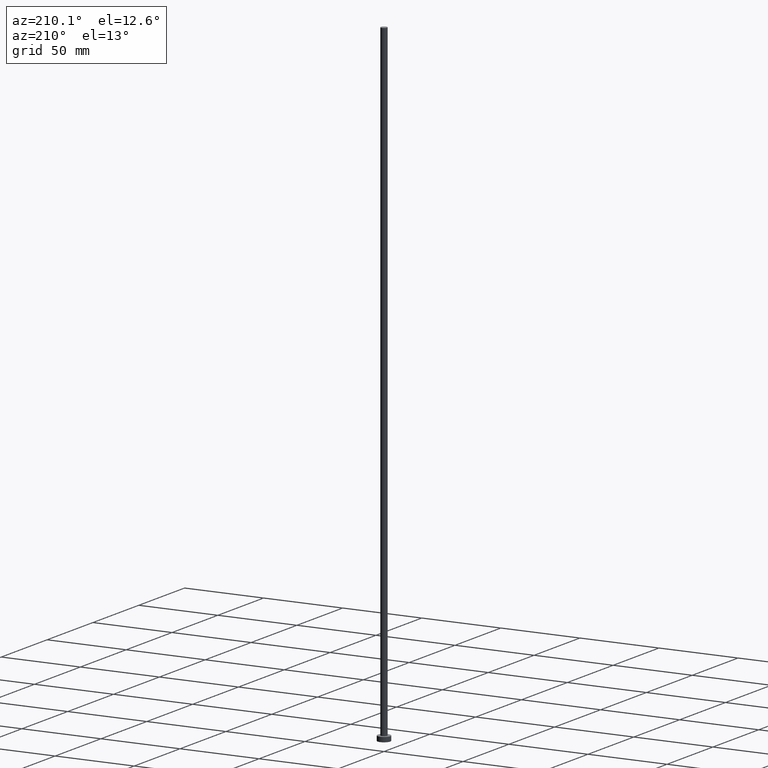
[diagram: clean part render]
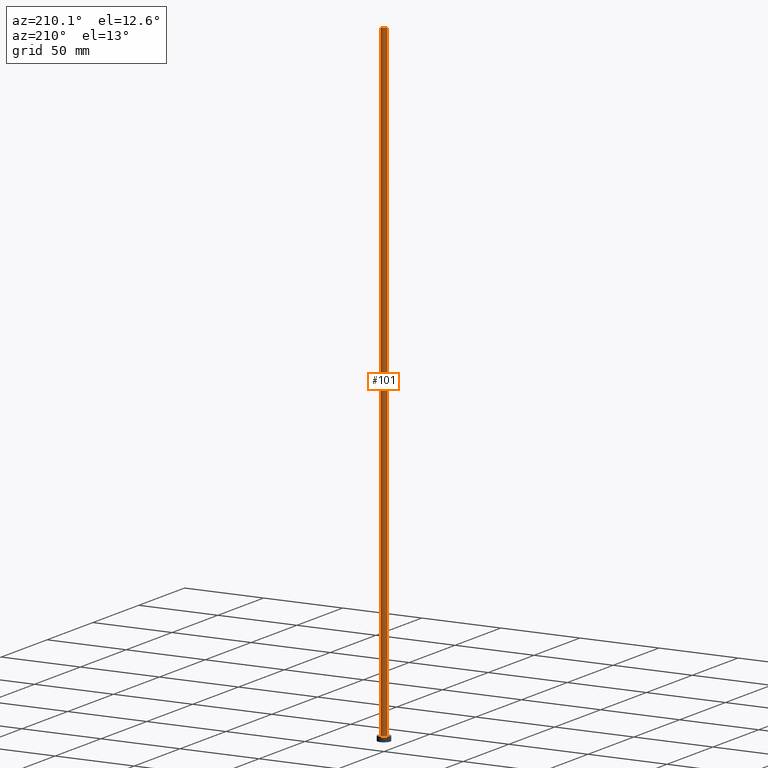
[diagram: same view with one face highlighted and labeled with its STEP entity id]
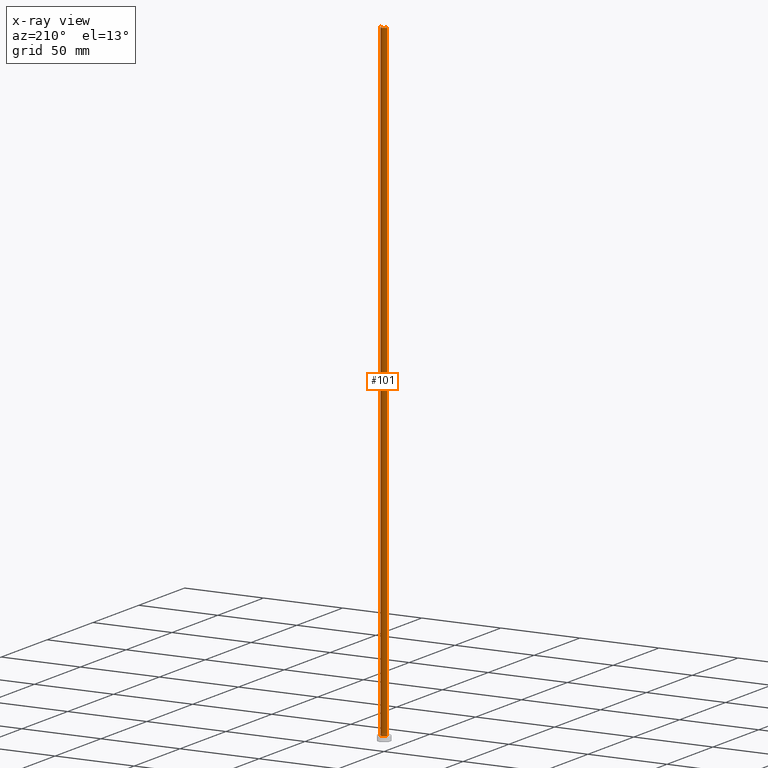
[diagram: x-ray of the same camera — body ghosted, the highlighted face saturated]
A machine part, auxiliary view. The second image highlights one B-rep face of the part: STEP entity #101.
The next image is the same camera in x-ray: the body ghosted, the highlighted face saturated — about 0% of this face is hidden behind the body in this view.
In plain terms, the highlighted cylindrical surface (edge-blend (fillet) strip) has radius 2 mm, axis along (-0, -0, -1).
Its self-contained STEP definition (entity closure, byte-faithful):
#8 = VERTEX_POINT ( 'NONE', #247 ) ;
#11 = EDGE_CURVE ( 'NONE', #8, #79, #64, .T. ) ;
#17 = CARTESIAN_POINT ( 'NONE',  ( 2.000000000000000000, 2.449293598294706414E-16, 3.000000000000000000 ) ) ;
#19 = FACE_OUTER_BOUND ( 'NONE', #25, .T. ) ;
#20 = DIRECTION ( 'NONE',  ( -0.000000000000000000, -0.000000000000000000, -1.000000000000000000 ) ) ;
#25 = EDGE_LOOP ( 'NONE', ( #222, #140, #159, #243 ) ) ;
#35 = EDGE_CURVE ( 'NONE', #79, #43, #98, .T. ) ;
#41 = DIRECTION ( 'NONE',  ( 1.000000000000000000, 0.000000000000000000, 0.000000000000000000 ) ) ;
#43 = VERTEX_POINT ( 'NONE', #180 ) ;
#45 = CARTESIAN_POINT ( 'NONE',  ( 2.000000000000000000, 2.449293598294706414E-16, 400.0000000000000000 ) ) ;
#54 = CARTESIAN_POINT ( 'NONE',  ( -2.000000000000000000, 0.000000000000000000, 400.0000000000000000 ) ) ;
#64 = LINE ( 'NONE', #45, #87 ) ;
#75 = EDGE_CURVE ( 'NONE', #200, #43, #111, .T. ) ;
#76 = CARTESIAN_POINT ( 'NONE',  ( -2.000000000000000000, 0.000000000000000000, 400.0000000000000000 ) ) ;
#79 = VERTEX_POINT ( 'NONE', #17 ) ;
#87 = VECTOR ( 'NONE', #20, 1000.000000000000000 ) ;
#98 = CIRCLE ( 'NONE', #166, 2.000000000000000000 ) ;
#101 = ADVANCED_FACE ( 'NONE', ( #19 ), #199, .T. ) ;
#111 = LINE ( 'NONE', #54, #211 ) ;
#112 = CIRCLE ( 'NONE', #185, 2.000000000000000000 ) ;
#116 = CARTESIAN_POINT ( 'NONE',  ( 0.000000000000000000, 0.000000000000000000, 3.000000000000000000 ) ) ;
#133 = CARTESIAN_POINT ( 'NONE',  ( 0.000000000000000000, 0.000000000000000000, 400.0000000000000000 ) ) ;
#135 = EDGE_CURVE ( 'NONE', #8, #200, #112, .T. ) ;
#140 = ORIENTED_EDGE ( 'NONE', *, *, #11, .T. ) ;
#143 = AXIS2_PLACEMENT_3D ( 'NONE', #133, #236, #218 ) ;
#157 = DIRECTION ( 'NONE',  ( 0.000000000000000000, 0.000000000000000000, 1.000000000000000000 ) ) ;
#159 = ORIENTED_EDGE ( 'NONE', *, *, #35, .T. ) ;
#166 = AXIS2_PLACEMENT_3D ( 'NONE', #116, #157, #186 ) ;
#180 = CARTESIAN_POINT ( 'NONE',  ( -2.000000000000000000, 0.000000000000000000, 3.000000000000000000 ) ) ;
#185 = AXIS2_PLACEMENT_3D ( 'NONE', #246, #215, #41 ) ;
#186 = DIRECTION ( 'NONE',  ( 1.000000000000000000, 0.000000000000000000, 0.000000000000000000 ) ) ;
#194 = DIRECTION ( 'NONE',  ( -0.000000000000000000, -0.000000000000000000, -1.000000000000000000 ) ) ;
#199 = CYLINDRICAL_SURFACE ( 'NONE', #143, 2.000000000000000000 ) ;
#200 = VERTEX_POINT ( 'NONE', #76 ) ;
#211 = VECTOR ( 'NONE', #194, 1000.000000000000000 ) ;
#215 = DIRECTION ( 'NONE',  ( 0.000000000000000000, 0.000000000000000000, 1.000000000000000000 ) ) ;
#218 = DIRECTION ( 'NONE',  ( -1.000000000000000000, 0.000000000000000000, 0.000000000000000000 ) ) ;
#222 = ORIENTED_EDGE ( 'NONE', *, *, #135, .F. ) ;
#236 = DIRECTION ( 'NONE',  ( -0.000000000000000000, -0.000000000000000000, -1.000000000000000000 ) ) ;
#243 = ORIENTED_EDGE ( 'NONE', *, *, #75, .F. ) ;
#246 = CARTESIAN_POINT ( 'NONE',  ( 0.000000000000000000, 0.000000000000000000, 400.0000000000000000 ) ) ;
#247 = CARTESIAN_POINT ( 'NONE',  ( 2.000000000000000000, 2.449293598294706414E-16, 400.0000000000000000 ) ) ;